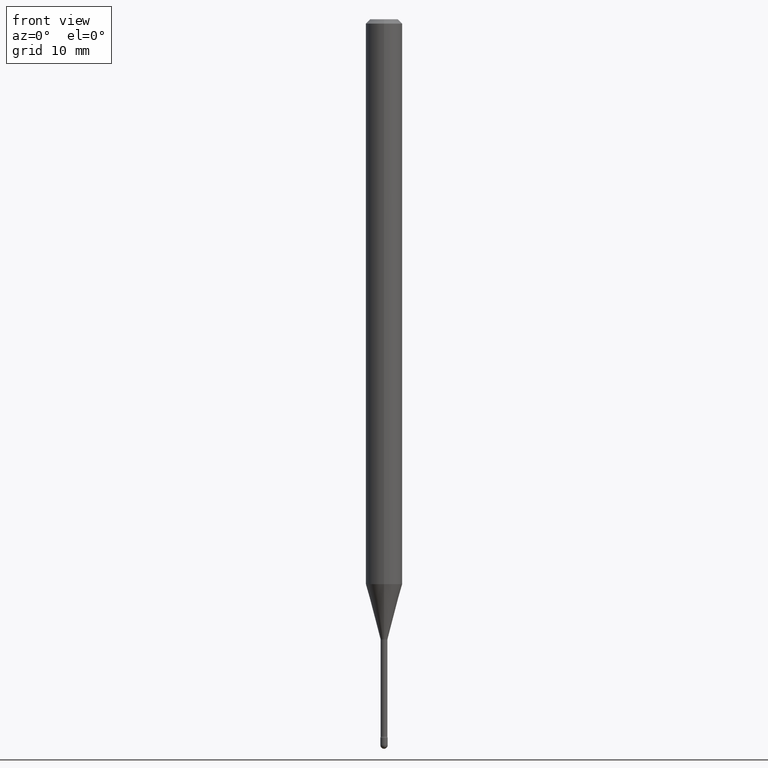
[diagram: clean part render]
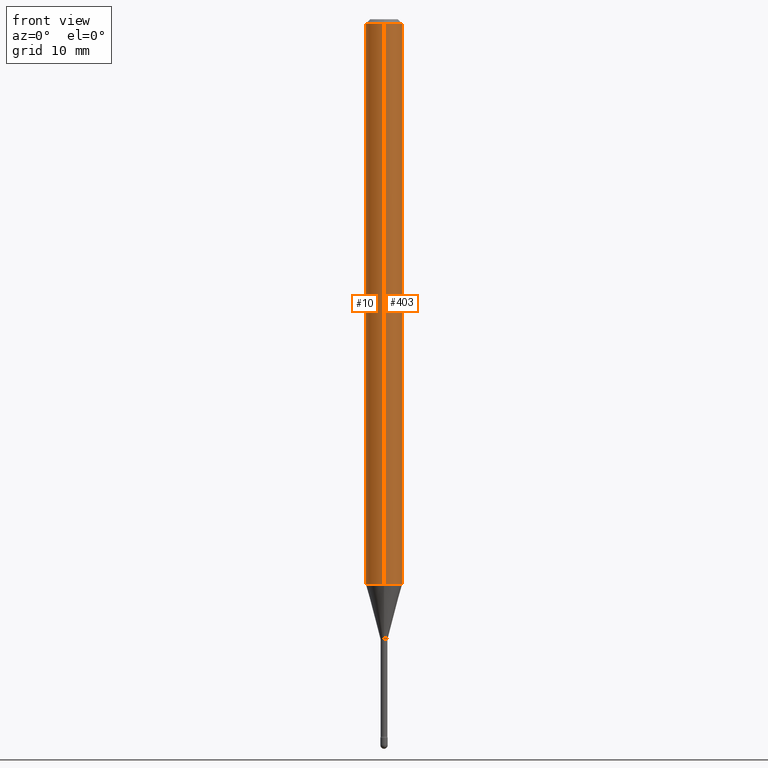
[diagram: same view with one multi-face feature highlighted, each face labeled with its STEP entity id]
A machine part, front view. The highlighted faces form ONE feature: a constant-radius fillet chain: 2 tangent blend faces with common blend radius 1.5875 mm. The faces share edges in the B-rep.
Their STEP definitions:
[1] entity #10 (Cylinder):
#10 = ADVANCED_FACE ( 'NONE', ( #258 ), #30, .T. ) ;
#15 = AXIS2_PLACEMENT_3D ( 'NONE', #176, #483, #397 ) ;
#30 = CYLINDRICAL_SURFACE ( 'NONE', #264, 0.06250000000000000000 ) ;
#43 = CIRCLE ( 'NONE', #15, 0.06250000000000000000 ) ;
#55 = VECTOR ( 'NONE', #217, 39.37007874015748143 ) ;
#69 = VERTEX_POINT ( 'NONE', #305 ) ;
#71 = EDGE_CURVE ( 'NONE', #190, #80, #142, .T. ) ;
#72 = DIRECTION ( 'NONE',  ( -2.445404936488947864E-29, 3.491572803883325128E-15, 1.000000000000000000 ) ) ;
#75 = DIRECTION ( 'NONE',  ( -6.982962677686265922E-15, -1.000000000000000000, 3.491572803883324339E-15 ) ) ;
#80 = VERTEX_POINT ( 'NONE', #395 ) ;
#126 = DIRECTION ( 'NONE',  ( -2.445404936488948144E-29, 3.491572803883325128E-15, 1.000000000000000000 ) ) ;
#142 = LINE ( 'NONE', #394, #55 ) ;
#144 = CARTESIAN_POINT ( 'NONE',  ( 4.440892098501098492E-16, 0.06249999999999323458, -1.935598421515880352 ) ) ;
#171 = CARTESIAN_POINT ( 'NONE',  ( -1.169113584055446105E-44, 1.669184350826100908E-30, 4.780733988912460139E-16 ) ) ;
#176 = CARTESIAN_POINT ( 'NONE',  ( 3.668107404733441729E-31, -5.237359205825016486E-17, -0.01500000000000008271 ) ) ;
#190 = VERTEX_POINT ( 'NONE', #239 ) ;
#204 = DIRECTION ( 'NONE',  ( -6.982962677686265922E-15, -1.000000000000000000, 4.370956789862821150E-15 ) ) ;
#217 = DIRECTION ( 'NONE',  ( -2.445404936488948144E-29, 3.491572803883325128E-15, 1.000000000000000000 ) ) ;
#235 = VERTEX_POINT ( 'NONE', #144 ) ;
#239 = CARTESIAN_POINT ( 'NONE',  ( -4.364351673553443378E-16, -0.06250000000000677236, -1.935598421515879686 ) ) ;
#258 = FACE_OUTER_BOUND ( 'NONE', #379, .T. ) ;
#264 = AXIS2_PLACEMENT_3D ( 'NONE', #171, #513, #75 ) ;
#294 = CARTESIAN_POINT ( 'NONE',  ( 4.733321935035148342E-29, -6.758282807804339113E-15, -1.935598421515879908 ) ) ;
#305 = CARTESIAN_POINT ( 'NONE',  ( 4.440892098501102436E-16, 0.06249999999999995143, -0.01500000000000030129 ) ) ;
#340 = CIRCLE ( 'NONE', #546, 0.06250000000000000000 ) ;
#347 = LINE ( 'NONE', #514, #375 ) ;
#375 = VECTOR ( 'NONE', #126, 39.37007874015748143 ) ;
#379 = EDGE_LOOP ( 'NONE', ( #543, #558, #468, #534 ) ) ;
#394 = CARTESIAN_POINT ( 'NONE',  ( -4.364351673553916201E-16, -0.06250000000000000000, 6.962966991339537851E-16 ) ) ;
#395 = CARTESIAN_POINT ( 'NONE',  ( -4.364351673553912750E-16, -0.06250000000000005551, -0.01499999999999986587 ) ) ;
#397 = DIRECTION ( 'NONE',  ( -6.982962677686265922E-15, -1.000000000000000000, 3.483106191921935554E-15 ) ) ;
#468 = ORIENTED_EDGE ( 'NONE', *, *, #71, .T. ) ;
#483 = DIRECTION ( 'NONE',  ( -2.445404936488947864E-29, 3.491572803883325128E-15, 1.000000000000000000 ) ) ;
#486 = EDGE_CURVE ( 'NONE', #235, #190, #340, .T. ) ;
#513 = DIRECTION ( 'NONE',  ( -2.445404936488947864E-29, 3.491572803883325128E-15, 1.000000000000000000 ) ) ;
#514 = CARTESIAN_POINT ( 'NONE',  ( 4.440892098500625669E-16, 0.06250000000000000000, 2.598500986485382427E-16 ) ) ;
#519 = EDGE_CURVE ( 'NONE', #235, #69, #347, .T. ) ;
#534 = ORIENTED_EDGE ( 'NONE', *, *, #562, .F. ) ;
#543 = ORIENTED_EDGE ( 'NONE', *, *, #519, .F. ) ;
#546 = AXIS2_PLACEMENT_3D ( 'NONE', #294, #72, #204 ) ;
#558 = ORIENTED_EDGE ( 'NONE', *, *, #486, .T. ) ;
#562 = EDGE_CURVE ( 'NONE', #69, #80, #43, .T. ) ;
[2] entity #403 (Cylinder):
#22 = ORIENTED_EDGE ( 'NONE', *, *, #555, .T. ) ;
#55 = VECTOR ( 'NONE', #217, 39.37007874015748143 ) ;
#69 = VERTEX_POINT ( 'NONE', #305 ) ;
#71 = EDGE_CURVE ( 'NONE', #190, #80, #142, .T. ) ;
#78 = AXIS2_PLACEMENT_3D ( 'NONE', #528, #224, #131 ) ;
#80 = VERTEX_POINT ( 'NONE', #395 ) ;
#88 = EDGE_CURVE ( 'NONE', #80, #69, #418, .T. ) ;
#101 = ORIENTED_EDGE ( 'NONE', *, *, #71, .F. ) ;
#126 = DIRECTION ( 'NONE',  ( -2.445404936488948144E-29, 3.491572803883325128E-15, 1.000000000000000000 ) ) ;
#131 = DIRECTION ( 'NONE',  ( -6.982962677686265922E-15, -1.000000000000000000, 4.370956789862821150E-15 ) ) ;
#142 = LINE ( 'NONE', #394, #55 ) ;
#144 = CARTESIAN_POINT ( 'NONE',  ( 4.440892098501098492E-16, 0.06249999999999323458, -1.935598421515880352 ) ) ;
#149 = CIRCLE ( 'NONE', #78, 0.06250000000000000000 ) ;
#190 = VERTEX_POINT ( 'NONE', #239 ) ;
#217 = DIRECTION ( 'NONE',  ( -2.445404936488948144E-29, 3.491572803883325128E-15, 1.000000000000000000 ) ) ;
#224 = DIRECTION ( 'NONE',  ( -2.445404936488947864E-29, 3.491572803883325128E-15, 1.000000000000000000 ) ) ;
#235 = VERTEX_POINT ( 'NONE', #144 ) ;
#239 = CARTESIAN_POINT ( 'NONE',  ( -4.364351673553443378E-16, -0.06250000000000677236, -1.935598421515879686 ) ) ;
#265 = AXIS2_PLACEMENT_3D ( 'NONE', #512, #299, #378 ) ;
#285 = FACE_OUTER_BOUND ( 'NONE', #545, .T. ) ;
#299 = DIRECTION ( 'NONE',  ( -2.445404936488947864E-29, 3.491572803883325128E-15, 1.000000000000000000 ) ) ;
#305 = CARTESIAN_POINT ( 'NONE',  ( 4.440892098501102436E-16, 0.06249999999999995143, -0.01500000000000030129 ) ) ;
#314 = CARTESIAN_POINT ( 'NONE',  ( 3.668107404733441729E-31, -5.237359205825016486E-17, -0.01500000000000008271 ) ) ;
#325 = ORIENTED_EDGE ( 'NONE', *, *, #88, .F. ) ;
#347 = LINE ( 'NONE', #514, #375 ) ;
#375 = VECTOR ( 'NONE', #126, 39.37007874015748143 ) ;
#378 = DIRECTION ( 'NONE',  ( -6.982962677686265922E-15, -1.000000000000000000, 3.491572803883324339E-15 ) ) ;
#382 = AXIS2_PLACEMENT_3D ( 'NONE', #314, #525, #564 ) ;
#394 = CARTESIAN_POINT ( 'NONE',  ( -4.364351673553916201E-16, -0.06250000000000000000, 6.962966991339537851E-16 ) ) ;
#395 = CARTESIAN_POINT ( 'NONE',  ( -4.364351673553912750E-16, -0.06250000000000005551, -0.01499999999999986587 ) ) ;
#403 = ADVANCED_FACE ( 'NONE', ( #285 ), #553, .T. ) ;
#418 = CIRCLE ( 'NONE', #382, 0.06250000000000000000 ) ;
#492 = ORIENTED_EDGE ( 'NONE', *, *, #519, .T. ) ;
#512 = CARTESIAN_POINT ( 'NONE',  ( -1.169113584055446105E-44, 1.669184350826100908E-30, 4.780733988912460139E-16 ) ) ;
#514 = CARTESIAN_POINT ( 'NONE',  ( 4.440892098500625669E-16, 0.06250000000000000000, 2.598500986485382427E-16 ) ) ;
#519 = EDGE_CURVE ( 'NONE', #235, #69, #347, .T. ) ;
#525 = DIRECTION ( 'NONE',  ( -2.445404936488947864E-29, 3.491572803883325128E-15, 1.000000000000000000 ) ) ;
#528 = CARTESIAN_POINT ( 'NONE',  ( 4.733321935035148342E-29, -6.758282807804339113E-15, -1.935598421515879908 ) ) ;
#545 = EDGE_LOOP ( 'NONE', ( #22, #492, #325, #101 ) ) ;
#553 = CYLINDRICAL_SURFACE ( 'NONE', #265, 0.06250000000000000000 ) ;
#555 = EDGE_CURVE ( 'NONE', #190, #235, #149, .T. ) ;
#564 = DIRECTION ( 'NONE',  ( -6.982962677686265922E-15, -1.000000000000000000, 3.483106191921935554E-15 ) ) ;